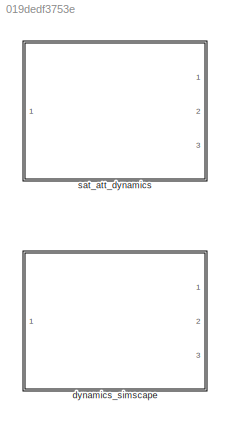
MODEL slx_019dedf3753e
KIND library
CONFIG AbsTol = auto
CONFIG EnableMultiTasking = off
CONFIG FixedStep = auto
CONFIG MaxStep = auto
CONFIG MinStep = auto
CONFIG RelTol = 1e-3
CONFIG SampleTimeConstraint = Unconstrained
CONFIG SolverName = VariableStepAuto
CONFIG StartTime = 0.0
CONFIG StopTime = 10.0
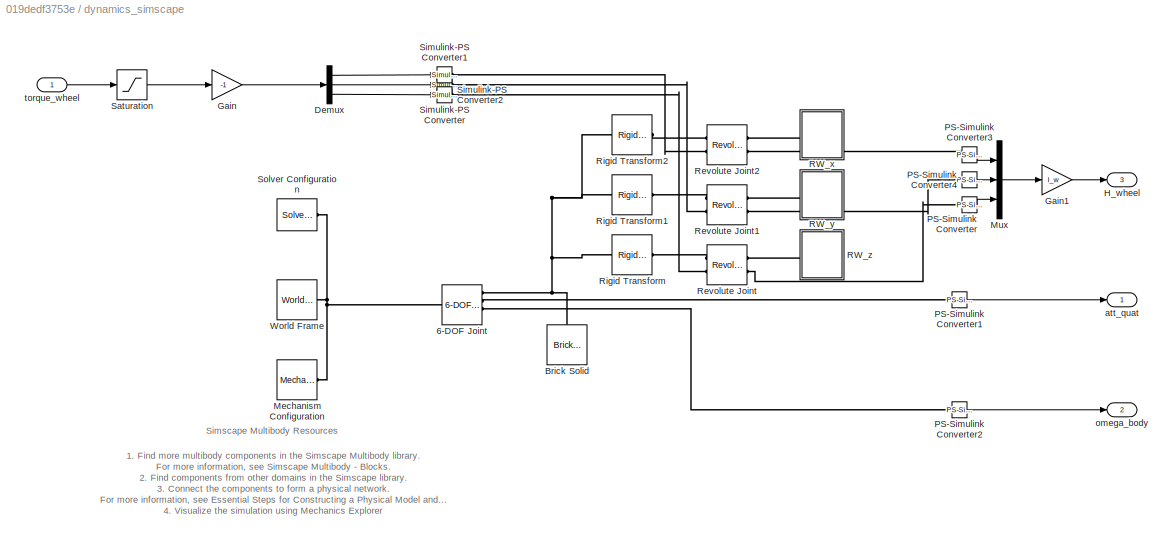
BLOCK [SubSystem] dynamics_simscape
  Ports = [1, 3]
  RequestExecContextInheritance = off
BLOCK [Reference] dynamics_simscape/6-DOF Joint  REF=sm_lib/Joints/6-DOF Joint
  Ports = [0, 0, 0, 0, 0, 1, 4]
  SourceBlock = sm_lib/Joints/6-DOF Joint
  SourceProductBaseCode = MS
  SourceType = 6-DOF Joint
BLOCK [Reference] dynamics_simscape/Brick Solid  REF=sm_lib/Body Elements/Brick Solid
  Ports = [0, 0, 0, 0, 0, 0, 1]
  SourceBlock = sm_lib/Body Elements/Brick Solid
  SourceProductBaseCode = MS
  SourceType = Brick Solid
BLOCK [Demux] dynamics_simscape/Demux
  Outputs = 3
  Ports = [1, 3]
BLOCK [Gain] dynamics_simscape/Gain
  Gain = -1
BLOCK [Gain] dynamics_simscape/Gain1
  Gain = I_w
BLOCK [Outport] dynamics_simscape/H_wheel
  Port = 3
BLOCK [Reference] dynamics_simscape/Mechanism Configuration  REF=sm_lib/Utilities/Mechanism
Configuration
  Ports = [0, 0, 0, 0, 0, 0, 1]
  SourceBlock = sm_lib/Utilities/Mechanism\nConfiguration
  SourceProductBaseCode = MS
  SourceType = Mechanism\nConfiguration
BLOCK [Mux] dynamics_simscape/Mux
  DisplayOption = bar
  Inputs = 3
  Ports = [3, 1]
BLOCK [Reference] dynamics_simscape/PS-Simulink Converter  REF=nesl_utility/PS-Simulink
Converter
  Ports = [0, 1, 0, 0, 0, 1]
  SourceBlock = nesl_utility/PS-Simulink\nConverter
  SourceProductBaseCode = PW,SS
  SourceType = PS-Simulink\nConverter
BLOCK [Reference] dynamics_simscape/PS-Simulink Converter1  REF=nesl_utility/PS-Simulink
Converter
  Ports = [0, 1, 0, 0, 0, 1]
  SourceBlock = nesl_utility/PS-Simulink\nConverter
  SourceProductBaseCode = PW,SS
  SourceType = PS-Simulink\nConverter
BLOCK [Reference] dynamics_simscape/PS-Simulink Converter2  REF=nesl_utility/PS-Simulink
Converter
  Ports = [0, 1, 0, 0, 0, 1]
  SourceBlock = nesl_utility/PS-Simulink\nConverter
  SourceProductBaseCode = PW,SS
  SourceType = PS-Simulink\nConverter
BLOCK [Reference] dynamics_simscape/PS-Simulink Converter3  REF=nesl_utility/PS-Simulink
Converter
  Ports = [0, 1, 0, 0, 0, 1]
  SourceBlock = nesl_utility/PS-Simulink\nConverter
  SourceProductBaseCode = PW,SS
  SourceType = PS-Simulink\nConverter
BLOCK [Reference] dynamics_simscape/PS-Simulink Converter4  REF=nesl_utility/PS-Simulink
Converter
  Ports = [0, 1, 0, 0, 0, 1]
  SourceBlock = nesl_utility/PS-Simulink\nConverter
  SourceProductBaseCode = PW,SS
  SourceType = PS-Simulink\nConverter
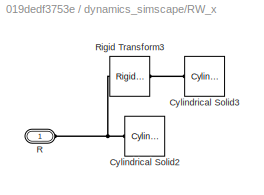
BLOCK [SubSystem] dynamics_simscape/RW_x
  Ports = [0, 0, 0, 0, 0, 1]
  RequestExecContextInheritance = off
BLOCK [Reference] dynamics_simscape/RW_x/Cylindrical Solid2  REF=sm_lib/Body Elements/Cylindrical Solid
  NameLocation = top
  Ports = [0, 0, 0, 0, 0, 0, 1]
  SourceBlock = sm_lib/Body Elements/Cylindrical Solid
  SourceProductBaseCode = MS
  SourceType = Cylindrical Solid
BLOCK [Reference] dynamics_simscape/RW_x/Cylindrical Solid3  REF=sm_lib/Body Elements/Cylindrical Solid
  NameLocation = top
  Ports = [0, 0, 0, 0, 0, 0, 1]
  SourceBlock = sm_lib/Body Elements/Cylindrical Solid
  SourceProductBaseCode = MS
  SourceType = Cylindrical Solid
BLOCK [PMIOPort] dynamics_simscape/RW_x/R
  Side = Left
BLOCK [Reference] dynamics_simscape/RW_x/Rigid Transform3  REF=sm_lib/Frames and
Transforms/Rigid
Transform
  Ports = [0, 0, 0, 0, 0, 1, 1]
  SourceBlock = sm_lib/Frames and\nTransforms/Rigid\nTransform
  SourceProductBaseCode = MS
  SourceType = Rigid\nTransform
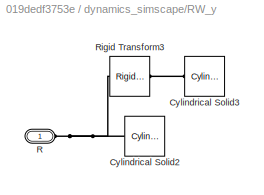
BLOCK [SubSystem] dynamics_simscape/RW_y
  Ports = [0, 0, 0, 0, 0, 1]
  RequestExecContextInheritance = off
BLOCK [Reference] dynamics_simscape/RW_y/Cylindrical Solid2  REF=sm_lib/Body Elements/Cylindrical Solid
  NameLocation = top
  Ports = [0, 0, 0, 0, 0, 0, 1]
  SourceBlock = sm_lib/Body Elements/Cylindrical Solid
  SourceProductBaseCode = MS
  SourceType = Cylindrical Solid
BLOCK [Reference] dynamics_simscape/RW_y/Cylindrical Solid3  REF=sm_lib/Body Elements/Cylindrical Solid
  NameLocation = top
  Ports = [0, 0, 0, 0, 0, 0, 1]
  SourceBlock = sm_lib/Body Elements/Cylindrical Solid
  SourceProductBaseCode = MS
  SourceType = Cylindrical Solid
BLOCK [PMIOPort] dynamics_simscape/RW_y/R
  Side = Left
BLOCK [Reference] dynamics_simscape/RW_y/Rigid Transform3  REF=sm_lib/Frames and
Transforms/Rigid
Transform
  Ports = [0, 0, 0, 0, 0, 1, 1]
  SourceBlock = sm_lib/Frames and\nTransforms/Rigid\nTransform
  SourceProductBaseCode = MS
  SourceType = Rigid\nTransform
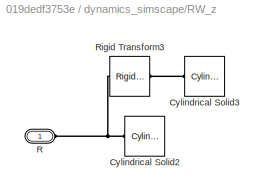
BLOCK [SubSystem] dynamics_simscape/RW_z
  Ports = [0, 0, 0, 0, 0, 1]
  RequestExecContextInheritance = off
BLOCK [Reference] dynamics_simscape/RW_z/Cylindrical Solid2  REF=sm_lib/Body Elements/Cylindrical Solid
  NameLocation = top
  Ports = [0, 0, 0, 0, 0, 0, 1]
  SourceBlock = sm_lib/Body Elements/Cylindrical Solid
  SourceProductBaseCode = MS
  SourceType = Cylindrical Solid
BLOCK [Reference] dynamics_simscape/RW_z/Cylindrical Solid3  REF=sm_lib/Body Elements/Cylindrical Solid
  NameLocation = top
  Ports = [0, 0, 0, 0, 0, 0, 1]
  SourceBlock = sm_lib/Body Elements/Cylindrical Solid
  SourceProductBaseCode = MS
  SourceType = Cylindrical Solid
BLOCK [PMIOPort] dynamics_simscape/RW_z/R
  Side = Left
BLOCK [Reference] dynamics_simscape/RW_z/Rigid Transform3  REF=sm_lib/Frames and
Transforms/Rigid
Transform
  Ports = [0, 0, 0, 0, 0, 1, 1]
  SourceBlock = sm_lib/Frames and\nTransforms/Rigid\nTransform
  SourceProductBaseCode = MS
  SourceType = Rigid\nTransform
BLOCK [Reference] dynamics_simscape/Revolute Joint  REF=sm_lib/Joints/Revolute Joint
  Ports = [0, 0, 0, 0, 0, 2, 2]
  SourceBlock = sm_lib/Joints/Revolute Joint
  SourceProductBaseCode = MS
  SourceType = Revolute Joint
BLOCK [Reference] dynamics_simscape/Revolute Joint1  REF=sm_lib/Joints/Revolute Joint
  Ports = [0, 0, 0, 0, 0, 2, 2]
  SourceBlock = sm_lib/Joints/Revolute Joint
  SourceProductBaseCode = MS
  SourceType = Revolute Joint
BLOCK [Reference] dynamics_simscape/Revolute Joint2  REF=sm_lib/Joints/Revolute Joint
  Ports = [0, 0, 0, 0, 0, 2, 2]
  SourceBlock = sm_lib/Joints/Revolute Joint
  SourceProductBaseCode = MS
  SourceType = Revolute Joint
BLOCK [Reference] dynamics_simscape/Rigid Transform  REF=sm_lib/Frames and
Transforms/Rigid
Transform
  Ports = [0, 0, 0, 0, 0, 1, 1]
  SourceBlock = sm_lib/Frames and\nTransforms/Rigid\nTransform
  SourceProductBaseCode = MS
  SourceType = Rigid\nTransform
BLOCK [Reference] dynamics_simscape/Rigid Transform1  REF=sm_lib/Frames and
Transforms/Rigid
Transform
  Ports = [0, 0, 0, 0, 0, 1, 1]
  SourceBlock = sm_lib/Frames and\nTransforms/Rigid\nTransform
  SourceProductBaseCode = MS
  SourceType = Rigid\nTransform
BLOCK [Reference] dynamics_simscape/Rigid Transform2  REF=sm_lib/Frames and
Transforms/Rigid
Transform
  Ports = [0, 0, 0, 0, 0, 1, 1]
  SourceBlock = sm_lib/Frames and\nTransforms/Rigid\nTransform
  SourceProductBaseCode = MS
  SourceType = Rigid\nTransform
BLOCK [Saturate] dynamics_simscape/Saturation
  LowerLimit = -torque_wheel_max
  UpperLimit = torque_wheel_max
BLOCK [Reference] dynamics_simscape/Simulink-PS Converter  REF=nesl_utility/Simulink-PS
Converter
  Ports = [1, 0, 0, 0, 0, 0, 1]
  SourceBlock = nesl_utility/Simulink-PS\nConverter
  SourceProductBaseCode = PW,SS
  SourceType = Simulink-PS\nConverter
BLOCK [Reference] dynamics_simscape/Simulink-PS Converter1  REF=nesl_utility/Simulink-PS
Converter
  Ports = [1, 0, 0, 0, 0, 0, 1]
  SourceBlock = nesl_utility/Simulink-PS\nConverter
  SourceProductBaseCode = PW,SS
  SourceType = Simulink-PS\nConverter
BLOCK [Reference] dynamics_simscape/Simulink-PS Converter2  REF=nesl_utility/Simulink-PS
Converter
  Ports = [1, 0, 0, 0, 0, 0, 1]
  SourceBlock = nesl_utility/Simulink-PS\nConverter
  SourceProductBaseCode = PW,SS
  SourceType = Simulink-PS\nConverter
BLOCK [Reference] dynamics_simscape/Solver Configuration  REF=nesl_utility/Solver
Configuration
  Ports = [0, 0, 0, 0, 0, 0, 1]
  SourceBlock = nesl_utility/Solver\nConfiguration
  SourceProductBaseCode = PW,SS
  SourceType = Solver\nConfiguration
BLOCK [Reference] dynamics_simscape/World Frame  REF=sm_lib/Frames and
Transforms/World Frame
  Ports = [0, 0, 0, 0, 0, 0, 1]
  SourceBlock = sm_lib/Frames and\nTransforms/World Frame
  SourceProductBaseCode = MS
  SourceType = World Frame
BLOCK [Outport] dynamics_simscape/att_quat
BLOCK [Outport] dynamics_simscape/omega_body
  Port = 2
BLOCK [Inport] dynamics_simscape/torque_wheel
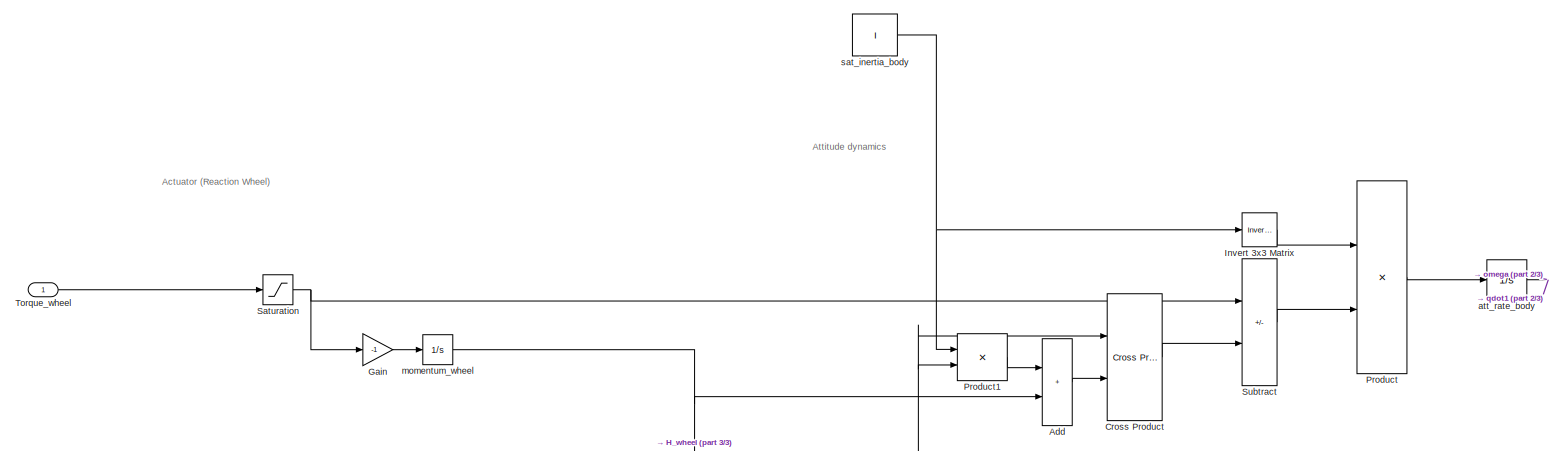
[diagram: sat_att_dynamics - part 1/3, middle left region]
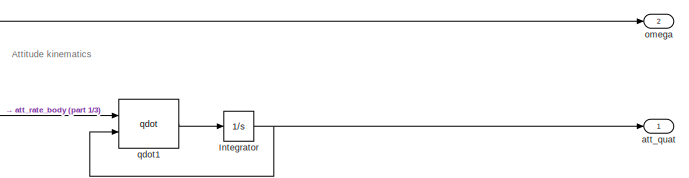
[diagram: sat_att_dynamics - part 2/3, middle right region]
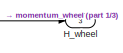
[diagram: sat_att_dynamics - part 3/3, bottom right region]
BLOCK [SubSystem] sat_att_dynamics
  Ports = [1, 3]
  RequestExecContextInheritance = off
BLOCK [Sum] sat_att_dynamics/Add
  IconShape = rectangular
  Ports = [2, 1]
BLOCK [Reference] sat_att_dynamics/Cross Product  REF=vrlib/Utilities/Cross Product
  Ports = [2, 1]
  SourceBlock = vrlib/Utilities/Cross Product
  SourceProductBaseCode = SL
  SourceType = Cross Product
BLOCK [Gain] sat_att_dynamics/Gain
  Gain = -1
BLOCK [Outport] sat_att_dynamics/H_wheel
  Port = 3
BLOCK [Integrator] sat_att_dynamics/Integrator
  ContinuousStateAttributes = 'Attitude'
  InitialCondition = q_0
  Ports = [1, 1]
BLOCK [Reference] sat_att_dynamics/Invert 3x3 Matrix  REF=aerolibutil/Invert 
3x3 Matrix
  Ports = [1, 1]
  SourceBlock = aerolibutil/Invert \n3x3 Matrix
  SourceProductBaseCode = AE
  SourceType = Invert 3x3 Matrix
BLOCK [Product] sat_att_dynamics/Product
  Multiplication = Matrix(*)
  Ports = [2, 1]
BLOCK [Product] sat_att_dynamics/Product1
  Multiplication = Matrix(*)
  Ports = [2, 1]
BLOCK [Saturate] sat_att_dynamics/Saturation
  LowerLimit = -torque_wheel_max * [1 1 1]
  UpperLimit = torque_wheel_max * [1 1 1]
BLOCK [Sum] sat_att_dynamics/Subtract
  IconShape = rectangular
  Inputs = +-
  Ports = [2, 1]
BLOCK [Inport] sat_att_dynamics/Torque_wheel
BLOCK [Outport] sat_att_dynamics/att_quat
BLOCK [Integrator] sat_att_dynamics/att_rate_body
  ContinuousStateAttributes = 'Attitude_Rate'
  InitialCondition = omega_0
  Ports = [1, 1]
BLOCK [Integrator] sat_att_dynamics/momentum_wheel
  InitialCondition = I_w .* omega_wheel_0
  Ports = [1, 1]
BLOCK [Outport] sat_att_dynamics/omega
  Port = 2
BLOCK [Reference] sat_att_dynamics/qdot1  REF=shared6dofsys/qdot  (lib defined in slx_91fbb8bad28b)
  Ports = [2, 1]
  SourceBlock = shared6dofsys/qdot
  SourceProductBaseCode = AE,PW,DR,MT,UV,VE
BLOCK [Constant] sat_att_dynamics/sat_inertia_body
  Value = I
ANNOTATION dynamics_simscape: 1. Find more multibody components in the Simscape Multibody library . For more information, see Simscape Multibody - Blocks . 2. Find components from other domains in the Simscape library . 3. Connect the components to form a physical network. For more information, see Essential Steps for Constructing a Physical Model and Creating a Multibody Model . 4. Visualize the simulation using Mechanics Exp...<+52ch>
ANNOTATION dynamics_simscape: Simscape Multibody Resources
ANNOTATION sat_att_dynamics: Actuator (Reaction Wheel)
ANNOTATION sat_att_dynamics: Attitude dynamics
ANNOTATION sat_att_dynamics: Attitude kinematics
LINE dynamics_simscape/Demux:1 -> dynamics_simscape/Simulink-PS Converter1:1
LINE dynamics_simscape/Demux:2 -> dynamics_simscape/Simulink-PS Converter:1
LINE dynamics_simscape/Demux:3 -> dynamics_simscape/Simulink-PS Converter2:1
LINE dynamics_simscape/Gain1:1 -> dynamics_simscape/H_wheel:1
LINE dynamics_simscape/Gain:1 -> dynamics_simscape/Demux:1
LINE dynamics_simscape/Mux:1 -> dynamics_simscape/Gain1:1
LINE dynamics_simscape/PS-Simulink Converter1:1 -> dynamics_simscape/att_quat:1
LINE dynamics_simscape/PS-Simulink Converter2:1 -> dynamics_simscape/omega_body:1
LINE dynamics_simscape/PS-Simulink Converter3:1 -> dynamics_simscape/Mux:1
LINE dynamics_simscape/PS-Simulink Converter4:1 -> dynamics_simscape/Mux:2
LINE dynamics_simscape/PS-Simulink Converter:1 -> dynamics_simscape/Mux:3
LINE dynamics_simscape/Saturation:1 -> dynamics_simscape/Gain:1
LINE dynamics_simscape/torque_wheel:1 -> dynamics_simscape/Saturation:1
LINE sat_att_dynamics/Add:1 -> sat_att_dynamics/Cross Product:2
LINE sat_att_dynamics/Cross Product:1 -> sat_att_dynamics/Subtract:2
LINE sat_att_dynamics/Gain:1 -> sat_att_dynamics/momentum_wheel:1
NET sat_att_dynamics/Integrator:1 -> sat_att_dynamics/att_quat:1, sat_att_dynamics/qdot1:2
LINE sat_att_dynamics/Invert 3x3 Matrix:1 -> sat_att_dynamics/Product:1
LINE sat_att_dynamics/Product1:1 -> sat_att_dynamics/Add:1
LINE sat_att_dynamics/Product:1 -> sat_att_dynamics/att_rate_body:1
NET sat_att_dynamics/Saturation:1 -> sat_att_dynamics/Gain:1, sat_att_dynamics/Subtract:1
LINE sat_att_dynamics/Subtract:1 -> sat_att_dynamics/Product:2
LINE sat_att_dynamics/Torque_wheel:1 -> sat_att_dynamics/Saturation:1
NET sat_att_dynamics/att_rate_body:1 -> sat_att_dynamics/Cross Product:1, sat_att_dynamics/Product1:2, sat_att_dynamics/omega:1, sat_att_dynamics/qdot1:1
NET sat_att_dynamics/momentum_wheel:1 -> sat_att_dynamics/Add:2, sat_att_dynamics/H_wheel:1
LINE sat_att_dynamics/qdot1:1 -> sat_att_dynamics/Integrator:1
NET sat_att_dynamics/sat_inertia_body:1 -> sat_att_dynamics/Invert 3x3 Matrix:1, sat_att_dynamics/Product1:1
PNET net1: dynamics_simscape/6-DOF Joint:LConn1 -- dynamics_simscape/Mechanism Configuration:RConn1 -- dynamics_simscape/Solver Configuration:RConn1 -- dynamics_simscape/World Frame:RConn1
PNET net2: dynamics_simscape/6-DOF Joint:RConn1 -- dynamics_simscape/Brick Solid:RConn1 -- dynamics_simscape/Rigid Transform1:LConn1 -- dynamics_simscape/Rigid Transform2:LConn1 -- dynamics_simscape/Rigid Transform:LConn1
PLINE dynamics_simscape/6-DOF Joint:RConn2 -- dynamics_simscape/PS-Simulink Converter1:LConn1
PLINE dynamics_simscape/6-DOF Joint:RConn3 -- dynamics_simscape/PS-Simulink Converter2:LConn1
PLINE dynamics_simscape/PS-Simulink Converter3:LConn1 -- dynamics_simscape/Revolute Joint2:RConn2
PLINE dynamics_simscape/PS-Simulink Converter4:LConn1 -- dynamics_simscape/Revolute Joint1:RConn2
PLINE dynamics_simscape/PS-Simulink Converter:LConn1 -- dynamics_simscape/Revolute Joint:RConn2
PNET net3: dynamics_simscape/RW_x/Cylindrical Solid2:RConn1 -- dynamics_simscape/RW_x/R:RConn1 -- dynamics_simscape/RW_x/Rigid Transform3:LConn1
PLINE dynamics_simscape/RW_x/Cylindrical Solid3:RConn1 -- dynamics_simscape/RW_x/Rigid Transform3:RConn1
PLINE dynamics_simscape/RW_x:LConn1 -- dynamics_simscape/Revolute Joint2:RConn1
PNET net4: dynamics_simscape/RW_y/Cylindrical Solid2:RConn1 -- dynamics_simscape/RW_y/R:RConn1 -- dynamics_simscape/RW_y/Rigid Transform3:LConn1
PLINE dynamics_simscape/RW_y/Cylindrical Solid3:RConn1 -- dynamics_simscape/RW_y/Rigid Transform3:RConn1
PLINE dynamics_simscape/RW_y:LConn1 -- dynamics_simscape/Revolute Joint1:RConn1
PNET net5: dynamics_simscape/RW_z/Cylindrical Solid2:RConn1 -- dynamics_simscape/RW_z/R:RConn1 -- dynamics_simscape/RW_z/Rigid Transform3:LConn1
PLINE dynamics_simscape/RW_z/Cylindrical Solid3:RConn1 -- dynamics_simscape/RW_z/Rigid Transform3:RConn1
PLINE dynamics_simscape/RW_z:LConn1 -- dynamics_simscape/Revolute Joint:RConn1
PLINE dynamics_simscape/Revolute Joint1:LConn1 -- dynamics_simscape/Rigid Transform1:RConn1
PLINE dynamics_simscape/Revolute Joint1:LConn2 -- dynamics_simscape/Simulink-PS Converter:RConn1
PLINE dynamics_simscape/Revolute Joint2:LConn1 -- dynamics_simscape/Rigid Transform2:RConn1
PLINE dynamics_simscape/Revolute Joint2:LConn2 -- dynamics_simscape/Simulink-PS Converter1:RConn1
PLINE dynamics_simscape/Revolute Joint:LConn1 -- dynamics_simscape/Rigid Transform:RConn1
PLINE dynamics_simscape/Revolute Joint:LConn2 -- dynamics_simscape/Simulink-PS Converter2:RConn1
note: NET lines group one-source signal fan-out (src -> all destinations, sorted); 1:1 wires keep LINE; PNET lines group multi-terminal physical nets as a canonical sorted terminal list (undirected conserving connections); 2-terminal nets keep the pairwise PLINE form
